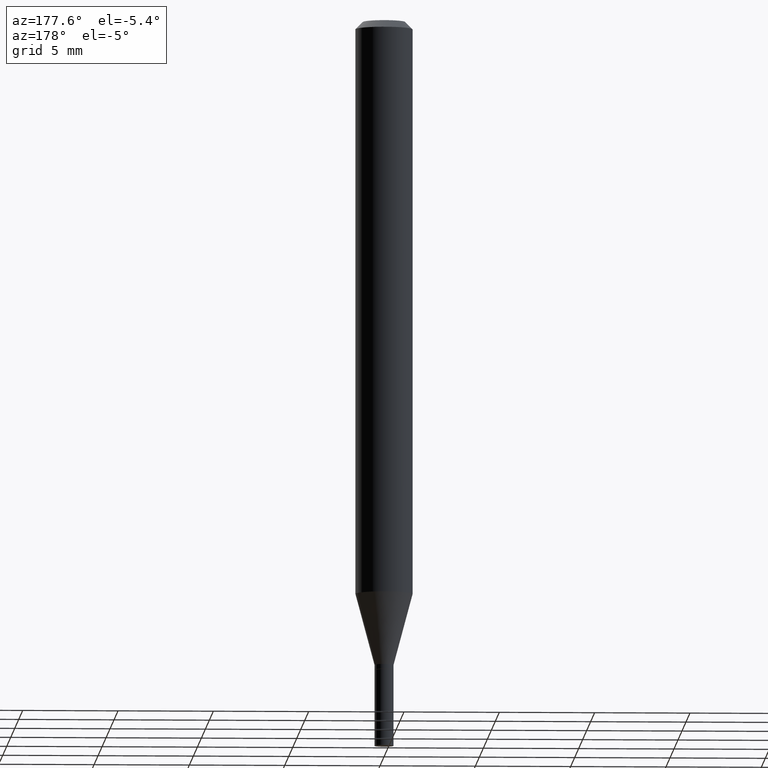
[diagram: clean part render]
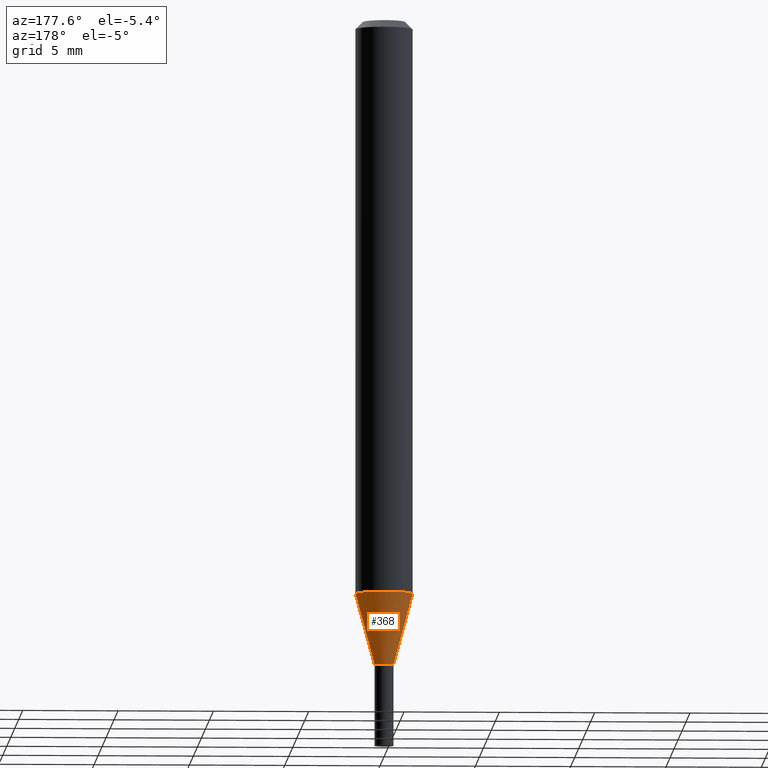
[diagram: same view with one face highlighted and labeled with its STEP entity id]
A machine part, auxiliary view. The second image highlights one B-rep face of the part: STEP entity #368.
In plain terms, the highlighted conical surface has half-angle 15 deg.
Its self-contained STEP definition (entity closure, byte-faithful):
#5 = CARTESIAN_POINT ( 'NONE',  ( 2.898232195509746702E-29, -4.137907464067076414E-15, -1.185143800722164409 ) ) ;
#13 = AXIS2_PLACEMENT_3D ( 'NONE', #147, #413, #154 ) ;
#36 = CARTESIAN_POINT ( 'NONE',  ( -0.01969999999999989468, -4.114504101497534251E-15, -1.331999999999999851 ) ) ;
#47 = ORIENTED_EDGE ( 'NONE', *, *, #347, .F. ) ;
#60 = CARTESIAN_POINT ( 'NONE',  ( -0.05905000000000001914, -3.718331978600737710E-15, -1.185143800722164409 ) ) ;
#78 = VERTEX_POINT ( 'NONE', #60 ) ;
#95 = VECTOR ( 'NONE', #297, 39.37007874015748854 ) ;
#96 = DIRECTION ( 'NONE',  ( 1.000000000000000000, -6.982962677686266711E-15, 0.000000000000000000 ) ) ;
#102 = CONICAL_SURFACE ( 'NONE', #165, 0.01969999999999989468, 0.2617993877991499074 ) ;
#117 = ORIENTED_EDGE ( 'NONE', *, *, #210, .T. ) ;
#147 = CARTESIAN_POINT ( 'NONE',  ( 3.257364449838602072E-29, -4.650653143339069312E-15, -1.331999999999999851 ) ) ;
#154 = DIRECTION ( 'NONE',  ( 1.000000000000000000, -6.982962677686266711E-15, 0.000000000000000000 ) ) ;
#165 = AXIS2_PLACEMENT_3D ( 'NONE', #355, #174, #96 ) ;
#174 = DIRECTION ( 'NONE',  ( -2.445468806185136597E-29, 3.491481338843145583E-15, 1.000000000000000000 ) ) ;
#177 = LINE ( 'NONE', #329, #300 ) ;
#178 = CARTESIAN_POINT ( 'NONE',  ( 0.05905000000000001914, -4.550251410184451334E-15, -1.185143800722164409 ) ) ;
#188 = CARTESIAN_POINT ( 'NONE',  ( 0.01969999999999989468, -4.788217508089488526E-15, -1.331999999999999851 ) ) ;
#208 = VERTEX_POINT ( 'NONE', #36 ) ;
#210 = EDGE_CURVE ( 'NONE', #208, #78, #177, .T. ) ;
#221 = LINE ( 'NONE', #411, #95 ) ;
#222 = DIRECTION ( 'NONE',  ( -0.2588190451025211836, 5.211531920934547886E-15, 0.9659258262890679791 ) ) ;
#232 = EDGE_LOOP ( 'NONE', ( #436, #117, #263, #47 ) ) ;
#254 = DIRECTION ( 'NONE',  ( -2.445468806185136597E-29, 3.491481338843145583E-15, 1.000000000000000000 ) ) ;
#263 = ORIENTED_EDGE ( 'NONE', *, *, #277, .F. ) ;
#277 = EDGE_CURVE ( 'NONE', #438, #78, #380, .T. ) ;
#297 = DIRECTION ( 'NONE',  ( 0.2588190451025211836, 1.565188264969622559E-15, 0.9659258262890679791 ) ) ;
#300 = VECTOR ( 'NONE', #222, 39.37007874015748854 ) ;
#310 = CIRCLE ( 'NONE', #13, 0.01969999999999989468 ) ;
#327 = EDGE_CURVE ( 'NONE', #348, #208, #310, .T. ) ;
#329 = CARTESIAN_POINT ( 'NONE',  ( -0.01969999999999989468, -4.510676224394330003E-15, -1.331999999999999851 ) ) ;
#337 = FACE_OUTER_BOUND ( 'NONE', #232, .T. ) ;
#347 = EDGE_CURVE ( 'NONE', #348, #438, #221, .T. ) ;
#348 = VERTEX_POINT ( 'NONE', #188 ) ;
#355 = CARTESIAN_POINT ( 'NONE',  ( 3.257364449838602072E-29, -4.650653143339069312E-15, -1.331999999999999851 ) ) ;
#368 = ADVANCED_FACE ( 'NONE', ( #337 ), #102, .T. ) ;
#380 = CIRCLE ( 'NONE', #425, 0.05905000000000001914 ) ;
#406 = DIRECTION ( 'NONE',  ( 1.000000000000000000, -6.982962677686270655E-15, 0.000000000000000000 ) ) ;
#411 = CARTESIAN_POINT ( 'NONE',  ( 0.01969999999999989468, -4.788217508089488526E-15, -1.331999999999999851 ) ) ;
#413 = DIRECTION ( 'NONE',  ( -2.445468806185136597E-29, 3.491481338843145583E-15, 1.000000000000000000 ) ) ;
#425 = AXIS2_PLACEMENT_3D ( 'NONE', #5, #254, #406 ) ;
#436 = ORIENTED_EDGE ( 'NONE', *, *, #327, .T. ) ;
#438 = VERTEX_POINT ( 'NONE', #178 ) ;